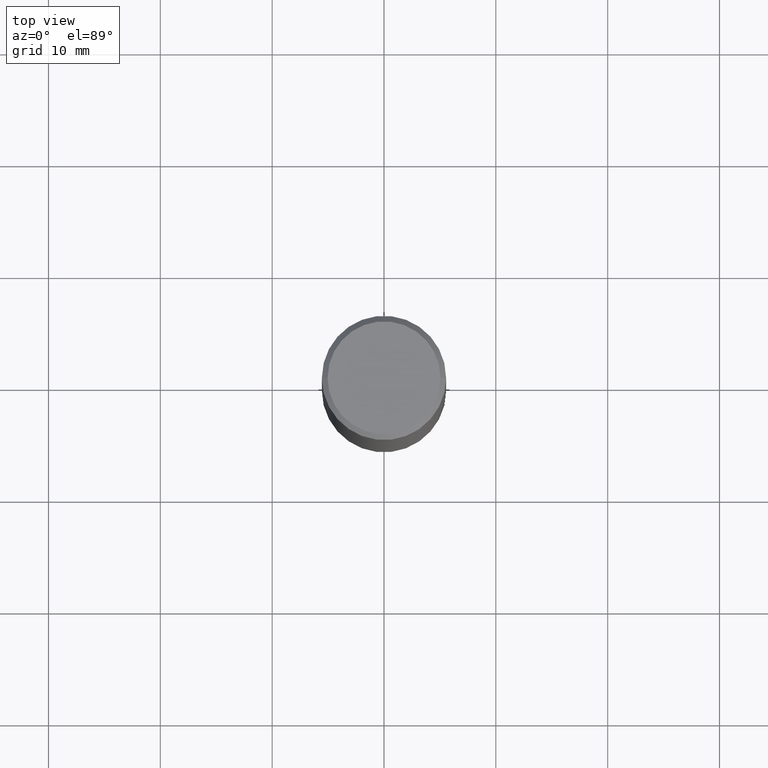
[diagram: clean part render]
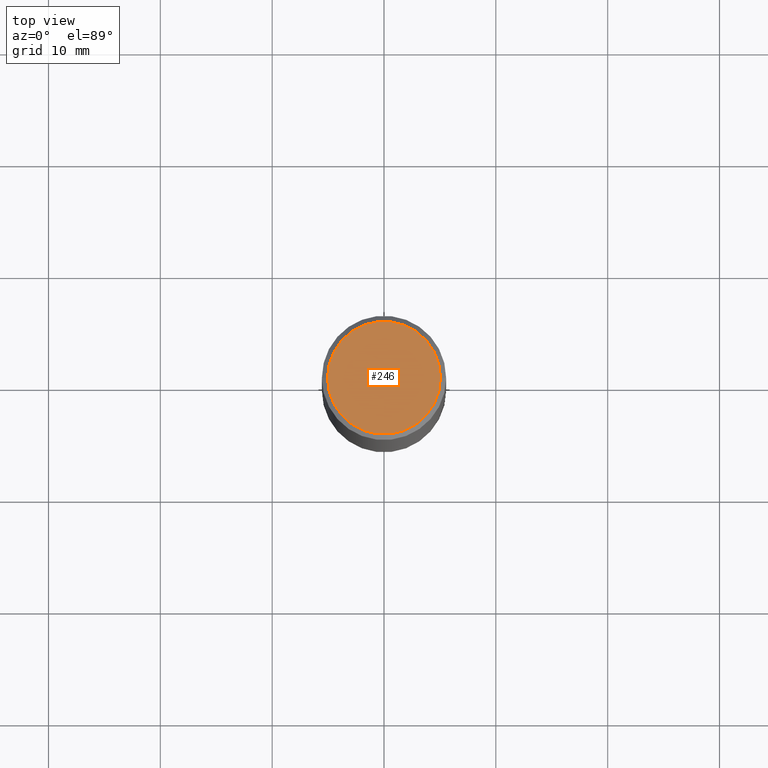
[diagram: same view with one face highlighted and labeled with its STEP entity id]
A machine part, top view. The second image highlights one B-rep face of the part: STEP entity #246.
In plain terms, the highlighted planar face has unit normal (0, -0, -1).
Its self-contained STEP definition (entity closure, byte-faithful):
#9 = ORIENTED_EDGE ( 'NONE', *, *, #156, .T. ) ;
#10 = DIRECTION ( 'NONE',  ( 1.000000000000000000, -6.982962677686266711E-15, 4.875627135991462684E-29 ) ) ;
#23 = AXIS2_PLACEMENT_3D ( 'NONE', #237, #240, #10 ) ;
#27 = DIRECTION ( 'NONE',  ( -1.000000000000000000, 6.982962677686265922E-15, -4.876176775795935793E-29 ) ) ;
#28 = CIRCLE ( 'NONE', #23, 0.1987499999999997879 ) ;
#30 = FACE_OUTER_BOUND ( 'NONE', #90, .T. ) ;
#84 = CARTESIAN_POINT ( 'NONE',  ( 1.387863832190143852E-15, 0.1987499999999997879, -7.110059660554760980E-16 ) ) ;
#90 = EDGE_LOOP ( 'NONE', ( #9, #270 ) ) ;
#93 = VERTEX_POINT ( 'NONE', #131 ) ;
#110 = DIRECTION ( 'NONE',  ( 2.438088387897960049E-29, -3.491481338843145188E-15, -1.000000000000000000 ) ) ;
#112 = PLANE ( 'NONE',  #333 ) ;
#118 = AXIS2_PLACEMENT_3D ( 'NONE', #141, #308, #228 ) ;
#131 = CARTESIAN_POINT ( 'NONE',  ( -0.1987499999999997879, 1.422778645578574712E-15, -3.414809992081311401E-17 ) ) ;
#141 = CARTESIAN_POINT ( 'NONE',  ( 8.350811314681758556E-46, -1.192274536304357760E-31, -3.414809992080329023E-17 ) ) ;
#152 = CIRCLE ( 'NONE', #118, 0.1987499999999997879 ) ;
#156 = EDGE_CURVE ( 'NONE', #93, #347, #152, .T. ) ;
#178 = CARTESIAN_POINT ( 'NONE',  ( 0.1987499999999997879, -1.467043770423237072E-15, -3.414809992079330621E-17 ) ) ;
#228 = DIRECTION ( 'NONE',  ( 1.000000000000000000, -6.982962677686266711E-15, 4.875627135991462684E-29 ) ) ;
#237 = CARTESIAN_POINT ( 'NONE',  ( 8.350811314681758556E-46, -1.192274536304357760E-31, -3.414809992080329023E-17 ) ) ;
#240 = DIRECTION ( 'NONE',  ( -2.445468806185136597E-29, 3.491481338843145583E-15, 1.000000000000000000 ) ) ;
#246 = ADVANCED_FACE ( 'NONE', ( #30 ), #112, .F. ) ;
#270 = ORIENTED_EDGE ( 'NONE', *, *, #348, .T. ) ;
#308 = DIRECTION ( 'NONE',  ( -2.445468806185136597E-29, 3.491481338843145583E-15, 1.000000000000000000 ) ) ;
#333 = AXIS2_PLACEMENT_3D ( 'NONE', #84, #110, #27 ) ;
#347 = VERTEX_POINT ( 'NONE', #178 ) ;
#348 = EDGE_CURVE ( 'NONE', #347, #93, #28, .T. ) ;